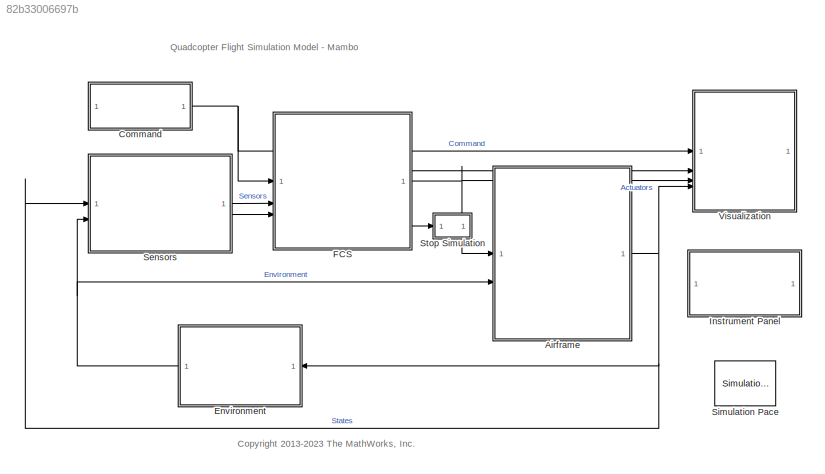
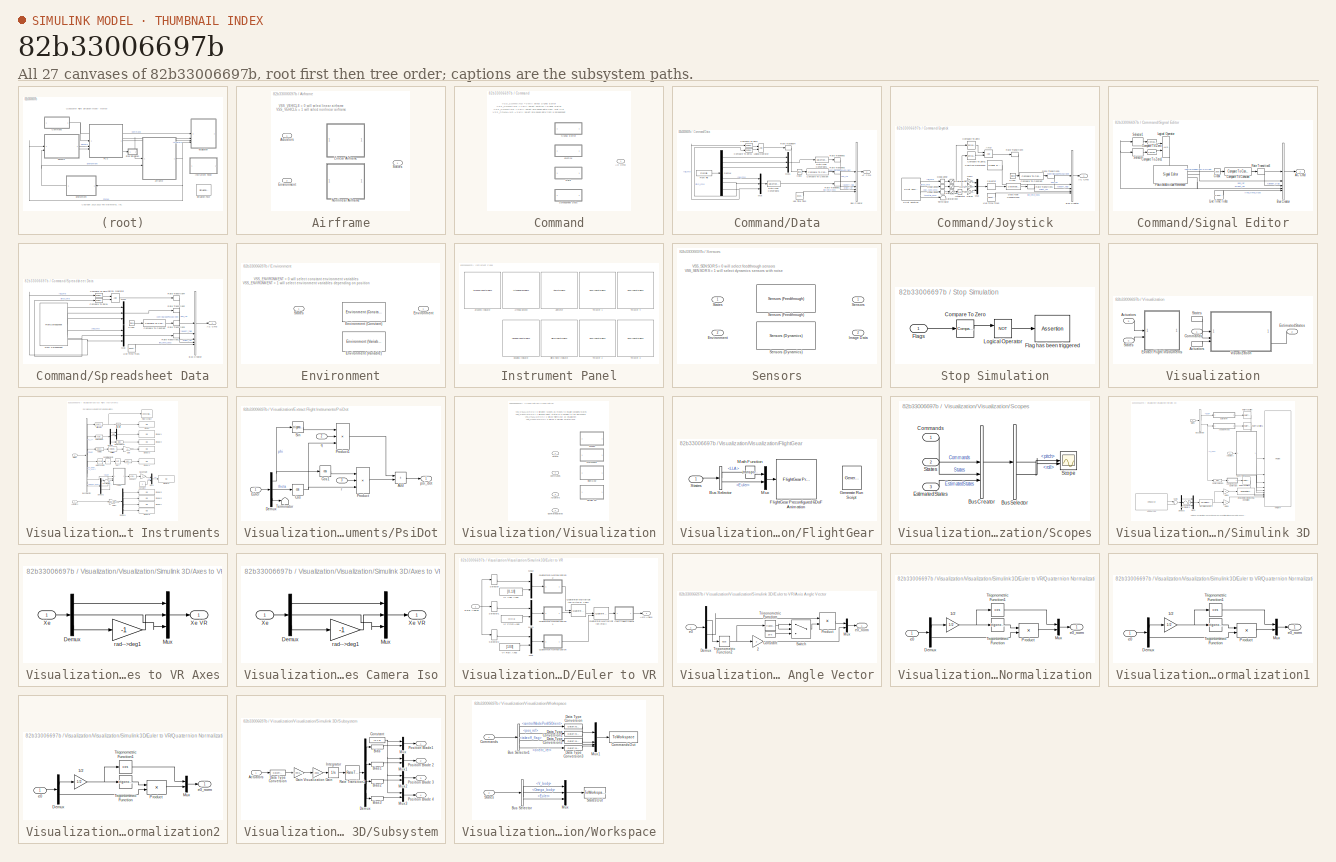
[diagram: thumbnail index - all 27 canvases of the model, root first then tree order]
MODEL slx_82b33006697b
KIND model
CONFIG AbsTol = auto
CONFIG EnableMultiTasking = on
CONFIG FixedStep = Ts
CONFIG MaxStep = auto
CONFIG MinStep = auto
CONFIG RelTol = 1e-3
CONFIG SampleTimeConstraint = Unconstrained
CONFIG SolverName = ode3
CONFIG StartTime = 0
CONFIG StopTime = TFinal
BLOCK [SubSystem] Airframe
  Variant = on
BLOCK [Inport] Airframe/Actuators
BLOCK [Inport] Airframe/Environment
  OutDataTypeStr = Bus: EnvironmentBus
  Port = 2
BLOCK [ModelReference] Airframe/Linear Airframe
  ModelNameDialog = linearAirframe.slx
  ModelReferenceVersion = 9.5
  VariantControl = VSS_VEHICLE==DynamicsMode.Linear
BLOCK [ModelReference] Airframe/Nonlinear Airframe
  ModelNameDialog = nonlinearAirframe.slx
  ModelReferenceVersion = 9.7
  VariantControl = VSS_VEHICLE==DynamicsMode.Nonlinear
BLOCK [Outport] Airframe/States
  OutDataTypeStr = Bus: StatesBus
  VectorParamsAs1DForOutWhenUnconnected = off
BLOCK [SubSystem] Command
  Variant = on
BLOCK [Outport] Command/AC Cmd
  OutDataTypeStr = Bus: CommandBus
  VectorParamsAs1DForOutWhenUnconnected = off
BLOCK [SubSystem] Command/Data
  VariantControl = VSS_COMMAND==CommandMode.Presaved_data
BLOCK [Outport] Command/Data/AC Cmd
  OutDataTypeStr = Bus: CommandBus
  VectorParamsAs1DForOutWhenUnconnected = off
BLOCK [BusCreator] Command/Data/Bus Creator
  DisplayOption = bar
  InheritFromInputs = on
  Inputs = 5
  NonVirtualBus = on
  OutDataTypeStr = Bus: CommandBus
BLOCK [Clock] Command/Data/Clock
BLOCK [Reference] Command/Data/Compare To Constant  REF=simulink/Logic and Bit
Operations/Compare
To Constant
  SourceBlock = simulink/Logic and Bit\nOperations/Compare\nTo Constant
  SourceType = Compare To Constant
BLOCK [Reference] Command/Data/Compare To Zero  REF=simulink/Logic and Bit
Operations/Compare
To Zero
  SourceBlock = simulink/Logic and Bit\nOperations/Compare\nTo Zero
  SourceType = Compare To Zero
BLOCK [Reference] Command/Data/Compare To Zero1  REF=simulink/Logic and Bit
Operations/Compare
To Zero
  SourceBlock = simulink/Logic and Bit\nOperations/Compare\nTo Zero
  SourceType = Compare To Zero
BLOCK [DataTypeConversion] Command/Data/Data Type Conversion1
  OutDataTypeStr = single
  RndMeth = Floor
  SaturateOnIntegerOverflow = off
BLOCK [DataTypeConversion] Command/Data/Data Type Conversion3
  OutDataTypeStr = single
  RndMeth = Floor
  SaturateOnIntegerOverflow = off
BLOCK [Demux] Command/Data/Demux
  Outputs = 6
BLOCK [FromFile] Command/Data/From File
  FileName = cmdData.mat
  SampleTime = Ts
BLOCK [Reference] Command/Data/Live Time Ticks  REF=simulink/Sources/Counter
Free-Running
  SourceBlock = simulink/Sources/Counter\nFree-Running
  SourceType = Counter Free-Running
BLOCK [Logic] Command/Data/Logical Operator
  AllPortsSameDT = off
  OutDataTypeStr = boolean
BLOCK [Mux] Command/Data/Mux
  DisplayOption = bar
  Inputs = 3
BLOCK [Mux] Command/Data/Mux1
  DisplayOption = bar
  Inputs = 3
BLOCK [RateTransition] Command/Data/Rate Transition1
  OutPortSampleTime = Ts
BLOCK [RateTransition] Command/Data/Rate Transition2
  OutPortSampleTime = Ts
BLOCK [RateTransition] Command/Data/Rate Transition3
  OutPortSampleTime = Ts
BLOCK [RateTransition] Command/Data/Rate Transition4
  OutPortSampleTime = Ts
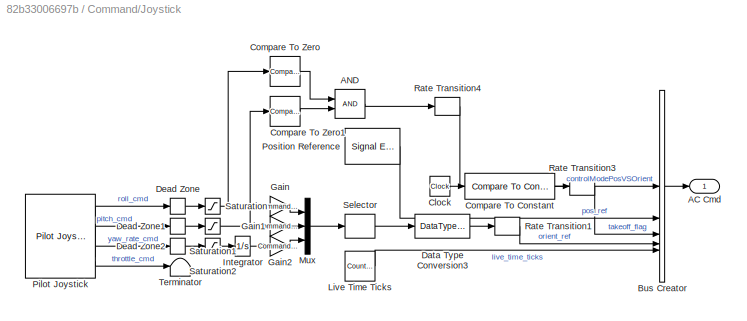
BLOCK [SubSystem] Command/Joystick
  VariantControl = VSS_COMMAND==CommandMode.Joystick
BLOCK [Outport] Command/Joystick/AC Cmd
  OutDataTypeStr = Bus: CommandBus
  VectorParamsAs1DForOutWhenUnconnected = off
BLOCK [Logic] Command/Joystick/AND
  AllPortsSameDT = off
  OutDataTypeStr = boolean
BLOCK [BusCreator] Command/Joystick/Bus Creator
  DisplayOption = bar
  InheritFromInputs = on
  Inputs = 5
  NonVirtualBus = on
  OutDataTypeStr = Bus: CommandBus
BLOCK [Clock] Command/Joystick/Clock
BLOCK [Reference] Command/Joystick/Compare To Constant  REF=simulink/Logic and Bit
Operations/Compare
To Constant
  SourceBlock = simulink/Logic and Bit\nOperations/Compare\nTo Constant
  SourceType = Compare To Constant
BLOCK [Reference] Command/Joystick/Compare To Zero  REF=simulink/Logic and Bit
Operations/Compare
To Zero
  SourceBlock = simulink/Logic and Bit\nOperations/Compare\nTo Zero
  SourceType = Compare To Zero
BLOCK [Reference] Command/Joystick/Compare To Zero1  REF=simulink/Logic and Bit
Operations/Compare
To Zero
  SourceBlock = simulink/Logic and Bit\nOperations/Compare\nTo Zero
  SourceType = Compare To Zero
BLOCK [DataTypeConversion] Command/Joystick/Data Type Conversion3
  OutDataTypeStr = single
  RndMeth = Floor
  SaturateOnIntegerOverflow = off
BLOCK [DeadZone] Command/Joystick/Dead Zone
  LowerValue = Command.rollDeadZoneStart
  UpperValue = Command.rollDeadZoneEnd
BLOCK [DeadZone] Command/Joystick/Dead Zone1
  LowerValue = Command.pitchDeadZoneStart
  UpperValue = Command.pitchDeadZoneEnd
BLOCK [DeadZone] Command/Joystick/Dead Zone2
  LowerValue = Command.yawDeadZoneStart
  UpperValue = Command.yawDeadZoneEnd
BLOCK [Gain] Command/Joystick/Gain
  Gain = Command.rollGain
BLOCK [Gain] Command/Joystick/Gain1
  Gain = Command.pitchGain
BLOCK [Gain] Command/Joystick/Gain2
  Gain = Command.yawGain
BLOCK [Integrator] Command/Joystick/Integrator
BLOCK [Reference] Command/Joystick/Live Time Ticks  REF=simulink/Sources/Counter
Free-Running
  SourceBlock = simulink/Sources/Counter\nFree-Running
  SourceType = Counter Free-Running
BLOCK [Mux] Command/Joystick/Mux
  DisplayOption = bar
  Inputs = 3
BLOCK [Reference] Command/Joystick/Pilot Joystick  REF=aerolibanimutils/Pilot Joystick
  SourceBlock = aerolibanimutils/Pilot Joystick
  SourceType = PilotJoystick
BLOCK [Reference] Command/Joystick/Position Reference  REF=SignalEditorBlockLib/Signal Editor
  SourceBlock = SignalEditorBlockLib/Signal Editor
  SourceType = SignalEditor
  UserDataPersistent = on
BLOCK [RateTransition] Command/Joystick/Rate Transition1
  OutPortSampleTime = Ts
BLOCK [RateTransition] Command/Joystick/Rate Transition3
  OutPortSampleTime = Ts
BLOCK [RateTransition] Command/Joystick/Rate Transition4
  OutPortSampleTime = Ts
BLOCK [Saturate] Command/Joystick/Saturation
  LowerLimit = Command.rollSatLower
  UpperLimit = Command.rollSatUpper
BLOCK [Saturate] Command/Joystick/Saturation1
  LowerLimit = Command.pitchSatLower
  UpperLimit = Command.pitchSatUpper
BLOCK [Saturate] Command/Joystick/Saturation2
  LowerLimit = Command.yawSatLower
  UpperLimit = Command.yawSatUpper
BLOCK [Selector] Command/Joystick/Selector
  IndexOptions = Index vector (dialog)
  Indices = [3 2 1]
  InputPortWidth = 3
  OutputSizes = 1
BLOCK [Terminator] Command/Joystick/Terminator
BLOCK [SubSystem] Command/Signal Editor
  VariantControl = VSS_COMMAND==CommandMode.Signal_Editor
BLOCK [Outport] Command/Signal Editor/AC Cmd
  OutDataTypeStr = Bus: CommandBus
  VectorParamsAs1DForOutWhenUnconnected = off
BLOCK [BusCreator] Command/Signal Editor/Bus Creator
  DisplayOption = bar
  InheritFromInputs = on
  Inputs = 5
  NonVirtualBus = on
  OutDataTypeStr = Bus: CommandBus
BLOCK [Clock] Command/Signal Editor/Clock
BLOCK [Reference] Command/Signal Editor/Compare To Constant  REF=simulink/Logic and Bit
Operations/Compare
To Constant
  SourceBlock = simulink/Logic and Bit\nOperations/Compare\nTo Constant
  SourceType = Compare To Constant
BLOCK [Reference] Command/Signal Editor/Compare To Zero  REF=simulink/Logic and Bit
Operations/Compare
To Zero
  SourceBlock = simulink/Logic and Bit\nOperations/Compare\nTo Zero
  SourceType = Compare To Zero
BLOCK [Reference] Command/Signal Editor/Compare To Zero1  REF=simulink/Logic and Bit
Operations/Compare
To Zero
  SourceBlock = simulink/Logic and Bit\nOperations/Compare\nTo Zero
  SourceType = Compare To Zero
BLOCK [Reference] Command/Signal Editor/Live Time Ticks  REF=simulink/Sources/Counter
Free-Running
  SourceBlock = simulink/Sources/Counter\nFree-Running
  SourceType = Counter Free-Running
BLOCK [Logic] Command/Signal Editor/Logical Operator
  AllPortsSameDT = off
  OutDataTypeStr = boolean
BLOCK [Reference] Command/Signal Editor/Position//Attitude Reference  REF=SignalEditorBlockLib/Signal Editor
  SourceBlock = SignalEditorBlockLib/Signal Editor
  SourceType = SignalEditor
  UserDataPersistent = on
BLOCK [RateTransition] Command/Signal Editor/Rate Transition3
  OutPortSampleTime = Ts
BLOCK [Selector] Command/Signal Editor/Selector
  IndexOptions = Index vector (dialog)
  Indices = 2
  InputPortWidth = 3
  OutputSizes = 1
BLOCK [Selector] Command/Signal Editor/Selector1
  IndexOptions = Index vector (dialog)
  Indices = 3
  InputPortWidth = 3
  OutputSizes = 1
BLOCK [SubSystem] Command/Spreadsheet Data
  VariantControl = VSS_COMMAND==CommandMode.Presaved_data_in_a_Spreadsheet
BLOCK [Outport] Command/Spreadsheet Data/AC Cmd
  OutDataTypeStr = Bus: CommandBus
  VectorParamsAs1DForOutWhenUnconnected = off
BLOCK [BusCreator] Command/Spreadsheet Data/Bus Creator
  DisplayOption = bar
  InheritFromInputs = on
  Inputs = 5
  NonVirtualBus = on
  OutDataTypeStr = Bus: CommandBus
BLOCK [Clock] Command/Spreadsheet Data/Clock
BLOCK [Reference] Command/Spreadsheet Data/Compare To Constant  REF=simulink/Logic and Bit
Operations/Compare
To Constant
  SourceBlock = simulink/Logic and Bit\nOperations/Compare\nTo Constant
  SourceType = Compare To Constant
BLOCK [Reference] Command/Spreadsheet Data/Compare To Zero  REF=simulink/Logic and Bit
Operations/Compare
To Zero
  SourceBlock = simulink/Logic and Bit\nOperations/Compare\nTo Zero
  SourceType = Compare To Zero
BLOCK [Reference] Command/Spreadsheet Data/Compare To Zero1  REF=simulink/Logic and Bit
Operations/Compare
To Zero
  SourceBlock = simulink/Logic and Bit\nOperations/Compare\nTo Zero
  SourceType = Compare To Zero
BLOCK [FromSpreadsheet] Command/Spreadsheet Data/From Spreadsheet
  FileName = cmdData.xlsx
  OutDataTypeStr = single
  SampleTime = Ts
  SheetName = data
BLOCK [Reference] Command/Spreadsheet Data/Live Time Ticks  REF=simulink/Sources/Counter
Free-Running
  SourceBlock = simulink/Sources/Counter\nFree-Running
  SourceType = Counter Free-Running
BLOCK [Logic] Command/Spreadsheet Data/Logical Operator
  AllPortsSameDT = off
  OutDataTypeStr = boolean
BLOCK [Mux] Command/Spreadsheet Data/Mux
  DisplayOption = bar
  Inputs = 3
BLOCK [Mux] Command/Spreadsheet Data/Mux1
  DisplayOption = bar
  Inputs = 3
BLOCK [RateTransition] Command/Spreadsheet Data/Rate Transition1
  OutPortSampleTime = Ts
BLOCK [RateTransition] Command/Spreadsheet Data/Rate Transition2
  OutPortSampleTime = Ts
BLOCK [RateTransition] Command/Spreadsheet Data/Rate Transition3
  OutPortSampleTime = Ts
BLOCK [RateTransition] Command/Spreadsheet Data/Rate Transition4
  OutPortSampleTime = Ts
BLOCK [SubSystem] Environment
  Variant = on
BLOCK [Outport] Environment/Environment
  OutDataTypeStr = Bus: EnvironmentBus
  VectorParamsAs1DForOutWhenUnconnected = off
BLOCK [Reference] Environment/Environment (Constant)  REF=environmentLibrary/Environment (Constant)
  SourceBlock = environmentLibrary/Environment (Constant)
  SourceType = SubSystem
BLOCK [Reference] Environment/Environment (Variable)  REF=environmentLibrary/Environment (Variable)
  SourceBlock = environmentLibrary/Environment (Variable)
  SourceType = SubSystem
BLOCK [Inport] Environment/States
  OutDataTypeStr = Bus: StatesBus
BLOCK [ModelReference] FCS
  ModelNameDialog = flightControlSystem.slx
  ModelReferenceVersion = 9.11
  PortSchema = {"entries":[{"content":{"sides":[{"content":{"connectorIds":["In1","In2","In3"]},"type":"ConnectorPlacement.EquallySpacedRectSide","uuid":"3b8a9085-81e2-4b31-8b72-0ce6798fab65"},{"content":{"connectorIds":["Out3","Out1","Out2"],"side":"RIGHT"},"type":"ConnectorPlacement.EquallySpacedRectSide","uuid":"1bca25a2-c514-4229-ac85-7a6014447b62"},{"content":{"side":"TOP"},"type":"ConnectorPlacement.Equall...<+248ch>
BLOCK [SubSystem] Instrument Panel
BLOCK [AirspeedIndicatorBlock] Instrument Panel/Airspeed Indicator
  LabelPosition = Hide
  ScaleMax = 18
  ScaleMin = 0
BLOCK [AltimeterBlock] Instrument Panel/Altimeter
  LabelPosition = Hide
BLOCK [ArtificialHorizonBlock] Instrument Panel/Artificial Horizon
  LabelPosition = Hide
BLOCK [ClimbIndicatorBlock] Instrument Panel/Climb Rate Indicator
  LabelPosition = Hide
  ScaleMax = 1000
BLOCK [HeadingIndicatorBlock] Instrument Panel/Heading Indicator
  LabelPosition = Hide
BLOCK [RPMIndicatorBlock] Instrument Panel/Thruster 1
  LabelPosition = Hide
BLOCK [RPMIndicatorBlock] Instrument Panel/Thruster 2
  LabelPosition = Hide
BLOCK [RPMIndicatorBlock] Instrument Panel/Thruster 3
  LabelPosition = Hide
BLOCK [RPMIndicatorBlock] Instrument Panel/Thruster 4
  LabelPosition = Hide
BLOCK [SubSystem] Sensors
  Variant = on
BLOCK [Inport] Sensors/Environment
  Port = 2
BLOCK [Outport] Sensors/Image Data
  Port = 2
  VectorParamsAs1DForOutWhenUnconnected = off
BLOCK [Outport] Sensors/Sensors
  VectorParamsAs1DForOutWhenUnconnected = off
BLOCK [Reference] Sensors/Sensors (Dynamics)  REF=sensorsLibrary/Sensors (Dynamics)
  SourceBlock = sensorsLibrary/Sensors (Dynamics)
BLOCK [Reference] Sensors/Sensors (Feedthrough)  REF=sensorsLibrary/Sensors (Feedthrough)
  SourceBlock = sensorsLibrary/Sensors (Feedthrough)
  SourceType = SubSystem
BLOCK [Inport] Sensors/States
BLOCK [Reference] Simulation Pace  REF=aerolibanimutils/Simulation Pace
  AttributesFormatString = %<SimulationPace> sec/sec
  Commented = on
  SourceBlock = aerolibanimutils/Simulation Pace
  SourceType = Simulation Pace
BLOCK [SubSystem] Stop Simulation
BLOCK [Reference] Stop Simulation/Compare To Zero  REF=simulink/Logic and Bit
Operations/Compare
To Zero
  SourceBlock = simulink/Logic and Bit\nOperations/Compare\nTo Zero
  SourceType = Compare To Zero
BLOCK [Assertion] Stop Simulation/Flag has been triggered
  Enabled = off
BLOCK [Inport] Stop Simulation/Flags
  OutDataTypeStr = uint8
BLOCK [Logic] Stop Simulation/Logical Operator
  AllPortsSameDT = off
  Operator = NOT
  OutDataTypeStr = boolean
BLOCK [SubSystem] Visualization
BLOCK [Inport] Visualization/Actuators
  Port = 3
BLOCK [InportShadow] Visualization/Actuators 
  Port = 3
BLOCK [Inport] Visualization/Commands
BLOCK [Inport] Visualization/EstimatedStates
  NameLocation = top
  Port = 2
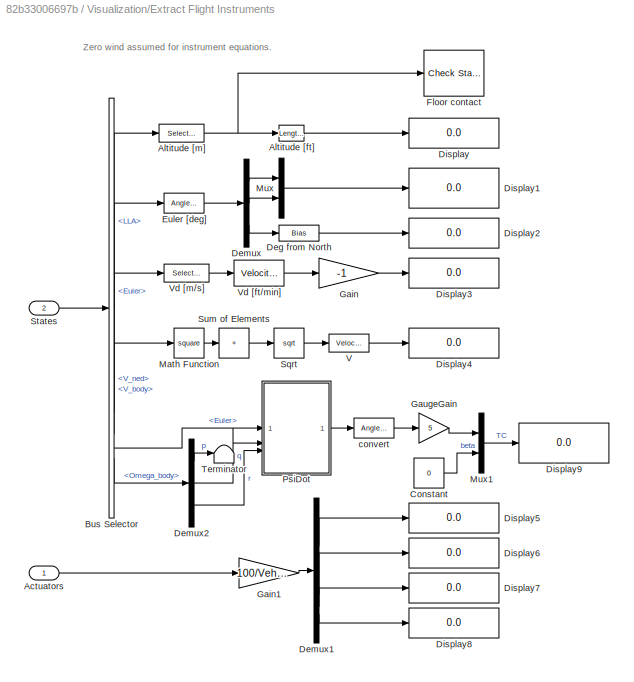
BLOCK [SubSystem] Visualization/Extract Flight Instruments
BLOCK [Inport] Visualization/Extract Flight Instruments/Actuators
BLOCK [Reference] Visualization/Extract Flight Instruments/Altitude [ft]  REF=aerolibconvert2/Length Conversion
  SourceBlock = aerolibconvert2/Length Conversion
  SourceType = Length Conversion
BLOCK [Selector] Visualization/Extract Flight Instruments/Altitude [m]
  IndexOptions = Index vector (dialog)
  Indices = [3]
  InputPortWidth = 3
  OutputSizes = 1
BLOCK [BusSelector] Visualization/Extract Flight Instruments/Bus Selector
  OutputSignals = LLA,Euler,V_ned,V_body,Euler,Omega_body
BLOCK [Constant] Visualization/Extract Flight Instruments/Constant
  Value = 0
BLOCK [Bias] Visualization/Extract Flight Instruments/Deg from North
  Bias = Vehicle.PositionOnEarth.FlatEarthToLLA.xAxis
  SaturateOnIntegerOverflow = off
BLOCK [Demux] Visualization/Extract Flight Instruments/Demux
  Outputs = 3
BLOCK [Demux] Visualization/Extract Flight Instruments/Demux1
BLOCK [Demux] Visualization/Extract Flight Instruments/Demux2
  Outputs = 3
BLOCK [Display] Visualization/Extract Flight Instruments/Display
  Decimation = 1
BLOCK [Display] Visualization/Extract Flight Instruments/Display1
  Decimation = 1
BLOCK [Display] Visualization/Extract Flight Instruments/Display2
  Decimation = 1
BLOCK [Display] Visualization/Extract Flight Instruments/Display3
  Decimation = 1
BLOCK [Display] Visualization/Extract Flight Instruments/Display4
  Decimation = 1
BLOCK [Display] Visualization/Extract Flight Instruments/Display5
  Decimation = 1
BLOCK [Display] Visualization/Extract Flight Instruments/Display6
  Decimation = 1
BLOCK [Display] Visualization/Extract Flight Instruments/Display7
  Decimation = 1
BLOCK [Display] Visualization/Extract Flight Instruments/Display8
  Decimation = 1
BLOCK [Display] Visualization/Extract Flight Instruments/Display9
  Decimation = 1
BLOCK [Reference] Visualization/Extract Flight Instruments/Euler [deg]  REF=aerolibconvert2/Angle Conversion
  SourceBlock = aerolibconvert2/Angle Conversion
  SourceType = Angle Conversion
BLOCK [Reference] Visualization/Extract Flight Instruments/Floor contact  REF=simulink/Model
Verification/Check Static 
Lower Bound
  Description = init.posLLA(3) <= u
  SourceBlock = simulink/Model\nVerification/Check Static \nLower Bound
  SourceType = Checks_SMin
BLOCK [Gain] Visualization/Extract Flight Instruments/Gain
  Gain = -1
BLOCK [Gain] Visualization/Extract Flight Instruments/Gain1
  Gain = 100/Vehicle.Motor.maxLimit*[1 -1 1 -1]
BLOCK [Gain] Visualization/Extract Flight Instruments/GaugeGain
  Gain = 5
BLOCK [Math] Visualization/Extract Flight Instruments/Math Function
  Operator = square
  SignedPower = on
BLOCK [Mux] Visualization/Extract Flight Instruments/Mux
  DisplayOption = bar
  Inputs = 2
BLOCK [Mux] Visualization/Extract Flight Instruments/Mux1
  DisplayOption = bar
  Inputs = 2
BLOCK [SubSystem] Visualization/Extract Flight Instruments/PsiDot
BLOCK [Sum] Visualization/Extract Flight Instruments/PsiDot/Add
  IconShape = rectangular
BLOCK [Trigonometry] Visualization/Extract Flight Instruments/PsiDot/Cos
  Operator = cos
BLOCK [Trigonometry] Visualization/Extract Flight Instruments/PsiDot/Cos1
  Operator = cos
BLOCK [Demux] Visualization/Extract Flight Instruments/PsiDot/Demux
  Outputs = 3
BLOCK [Inport] Visualization/Extract Flight Instruments/PsiDot/Euler
BLOCK [Product] Visualization/Extract Flight Instruments/PsiDot/Product
  Inputs = **/
BLOCK [Product] Visualization/Extract Flight Instruments/PsiDot/Product1
  Inputs = **/
BLOCK [Trigonometry] Visualization/Extract Flight Instruments/PsiDot/Sin
BLOCK [Terminator] Visualization/Extract Flight Instruments/PsiDot/Terminator
BLOCK [Outport] Visualization/Extract Flight Instruments/PsiDot/psi_dot
BLOCK [Inport] Visualization/Extract Flight Instruments/PsiDot/q
  Port = 2
BLOCK [Inport] Visualization/Extract Flight Instruments/PsiDot/r
  Port = 3
BLOCK [Sqrt] Visualization/Extract Flight Instruments/Sqrt
BLOCK [Inport] Visualization/Extract Flight Instruments/States
  Port = 2
BLOCK [Sum] Visualization/Extract Flight Instruments/Sum of Elements
  IconShape = rectangular
  Inputs = +
BLOCK [Terminator] Visualization/Extract Flight Instruments/Terminator
BLOCK [Reference] Visualization/Extract Flight Instruments/V  REF=aerolibconvert2/Velocity Conversion
  SourceBlock = aerolibconvert2/Velocity Conversion
  SourceType = Velocity Conversion
BLOCK [Reference] Visualization/Extract Flight Instruments/Vd [ft//min]  REF=aerolibconvert2/Velocity Conversion
  SourceBlock = aerolibconvert2/Velocity Conversion
  SourceType = Velocity Conversion
BLOCK [Selector] Visualization/Extract Flight Instruments/Vd [m//s]
  IndexOptions = Index vector (dialog)
  Indices = [3]
  InputPortWidth = 3
  OutputSizes = 1
BLOCK [Reference] Visualization/Extract Flight Instruments/convert  REF=aerolibconvert2/Angle Conversion
  SourceBlock = aerolibconvert2/Angle Conversion
  SourceType = Angle Conversion
BLOCK [Inport] Visualization/States
  Port = 4
BLOCK [InportShadow] Visualization/States 
  Port = 4
BLOCK [SubSystem] Visualization/Visualization
  PortSchema = {"entries":[{"content":{"sides":[{"content":{"connectorIds":["In1","In2","In3"]},"type":"ConnectorPlacement.EquallySpacedRectSide","uuid":"2c9bd87c-512d-49f9-9652-4e64ed9ffaba"},{"content":{"connectorIds":["In4"],"side":"RIGHT"},"type":"ConnectorPlacement.EquallySpacedRectSide","uuid":"cf9bbf52-b4e5-493a-96ca-812109a76c1f"},{"content":{"side":"TOP"},"type":"ConnectorPlacement.EquallySpacedRectSide...<+233ch>
  Variant = on
BLOCK [Inport] Visualization/Visualization/Actuators
  Port = 3
BLOCK [Inport] Visualization/Visualization/Commands
  OutDataTypeStr = Bus: CommandBus
  Port = 2
BLOCK [Inport] Visualization/Visualization/EstimatedStates
  Port = 4
BLOCK [SubSystem] Visualization/Visualization/FlightGear
  VariantControl = VSS_VISUALIZATION==VisualizationMode.FlightGear
BLOCK [BusSelector] Visualization/Visualization/FlightGear/Bus Selector
  OutputSignals = LLA,Euler
BLOCK [Reference] Visualization/Visualization/FlightGear/FlightGear Preconfigured 6DoF Animation  REF=aerolibfltsims/FlightGear
Preconfigured
6DoF Animation
  AttributesFormatString = Version Selected: %<xFlightGearVersion>
  SourceBlock = aerolibfltsims/FlightGear\nPreconfigured\n6DoF Animation
  SourceType = FlightGearQuick6DoFAnimation
BLOCK [Reference] Visualization/Visualization/FlightGear/Generate Run Script  REF=aerolibfltsims/Generate
Run Script
  SourceBlock = aerolibfltsims/Generate\nRun Script
  SourceType = Generate FlightGear Run Script
BLOCK [Math] Visualization/Visualization/FlightGear/Math Function
  Operator = transpose
  SignedPower = on
BLOCK [Mux] Visualization/Visualization/FlightGear/Mux
  DisplayOption = bar
  Inputs = 2
BLOCK [Inport] Visualization/Visualization/FlightGear/States
BLOCK [SubSystem] Visualization/Visualization/Scopes
  VariantControl = VSS_VISUALIZATION==VisualizationMode.Scopes
BLOCK [BusCreator] Visualization/Visualization/Scopes/Bus Creator
  DisplayOption = bar
  InheritFromInputs = on
  Inputs = 3
BLOCK [BusSelector] Visualization/Visualization/Scopes/Bus Selector
  OutputSignals = EstimatedStates.pitch,EstimatedStates.roll
BLOCK [Inport] Visualization/Visualization/Scopes/Commands
BLOCK [Inport] Visualization/Visualization/Scopes/EstimatedStates
  Port = 3
BLOCK [Scope] Visualization/Visualization/Scopes/Scope
  Floating = off
  NumInputPorts = 2
  ScopeSpecificationString = Simulink.scopes.TimeScopeBlockCfg('CurrentConfiguration', extmgr.ConfigurationSet(extmgr.Configuration('Core','General UI',true),extmgr.Configuration('Core','Source UI',true),extmgr.Configuration('Sources','WiredSimulink',true),extmgr.Configuration('Visuals','Time Domain',true,'SerializedDisplays',{struct('MinYLimReal','-0.12952','MaxYLimReal','0.17791','YLabelReal','','MinYLimMag','0.00000','MaxY...<+1964ch>
BLOCK [Inport] Visualization/Visualization/Scopes/States
  Port = 2
BLOCK [SubSystem] Visualization/Visualization/Simulink 3D
  VariantControl = VSS_VISUALIZATION==VisualizationMode.Simulink_3D
BLOCK [Inport] Visualization/Visualization/Simulink 3D/Actuators
  Port = 2
BLOCK [SubSystem] Visualization/Visualization/Simulink 3D/Axes to VR Axes
BLOCK [SubSystem] Visualization/Visualization/Simulink 3D/Axes to VR Axes Camera Iso
BLOCK [Demux] Visualization/Visualization/Simulink 3D/Axes to VR Axes Camera Iso/Demux
  DisplayOption = none
  Outputs = 3
BLOCK [Mux] Visualization/Visualization/Simulink 3D/Axes to VR Axes Camera Iso/Mux
  DisplayOption = bar
  Inputs = 3
BLOCK [Inport] Visualization/Visualization/Simulink 3D/Axes to VR Axes Camera Iso/Xe
BLOCK [Outport] Visualization/Visualization/Simulink 3D/Axes to VR Axes Camera Iso/Xe VR
  VectorParamsAs1DForOutWhenUnconnected = off
BLOCK [Gain] Visualization/Visualization/Simulink 3D/Axes to VR Axes Camera Iso/rad-->deg1
  Gain = -1
  NameLocation = top
  OutDataTypeStr = Inherit: Same as input
  ParamDataTypeStr = Inherit: Same as input
  SaturateOnIntegerOverflow = on
BLOCK [Demux] Visualization/Visualization/Simulink 3D/Axes to VR Axes/Demux
  DisplayOption = none
  Outputs = 3
BLOCK [Mux] Visualization/Visualization/Simulink 3D/Axes to VR Axes/Mux
  DisplayOption = bar
  Inputs = 3
BLOCK [Inport] Visualization/Visualization/Simulink 3D/Axes to VR Axes/Xe
BLOCK [Outport] Visualization/Visualization/Simulink 3D/Axes to VR Axes/Xe VR
  VectorParamsAs1DForOutWhenUnconnected = off
BLOCK [Gain] Visualization/Visualization/Simulink 3D/Axes to VR Axes/rad-->deg1
  Gain = -1
  NameLocation = top
  OutDataTypeStr = Inherit: Same as input
  ParamDataTypeStr = Inherit: Same as input
  SaturateOnIntegerOverflow = on
BLOCK [BusSelector] Visualization/Visualization/Simulink 3D/Bus Selector
  OutputSignals = Euler,X_ned
BLOCK [Bias] Visualization/Visualization/Simulink 3D/Camera bias Iso
  Bias = [0.9009 .99 -.6247]'
  SaturateOnIntegerOverflow = off
BLOCK [Constant] Visualization/Visualization/Simulink 3D/Constant3
  Value = 0
BLOCK [Demux] Visualization/Visualization/Simulink 3D/Demux3
  Outputs = 3
BLOCK [SubSystem] Visualization/Visualization/Simulink 3D/Euler to VR
BLOCK [Outport] Visualization/Visualization/Simulink 3D/Euler to VR/Axis Angle
  VectorParamsAs1DForOutWhenUnconnected = off
BLOCK [SubSystem] Visualization/Visualization/Simulink 3D/Euler to VR/Axis Angle Vector
BLOCK [Gain] Visualization/Visualization/Simulink 3D/Euler to VR/Axis Angle Vector/2
  Gain = 2
  OutDataTypeStr = Inherit: Same as input
  ParamDataTypeStr = Inherit: Same as input
  SaturateOnIntegerOverflow = on
BLOCK [Constant] Visualization/Visualization/Simulink 3D/Euler to VR/Axis Angle Vector/Constant
  Value = 1e-6
BLOCK [Demux] Visualization/Visualization/Simulink 3D/Euler to VR/Axis Angle Vector/Demux
  DisplayOption = none
  Outputs = [1 3 ]
BLOCK [Mux] Visualization/Visualization/Simulink 3D/Euler to VR/Axis Angle Vector/Mux
  DisplayOption = bar
  Inputs = 2
BLOCK [Product] Visualization/Visualization/Simulink 3D/Euler to VR/Axis Angle Vector/Product
  InputSameDT = on
  Inputs = */
  OutDataTypeStr = Inherit: Same as first input
  SaturateOnIntegerOverflow = on
BLOCK [Switch] Visualization/Visualization/Simulink 3D/Euler to VR/Axis Angle Vector/Switch
  Criteria = u2 ~= 0
  InputSameDT = off
  SaturateOnIntegerOverflow = off
BLOCK [Trigonometry] Visualization/Visualization/Simulink 3D/Euler to VR/Axis Angle Vector/Trigonometric Function
BLOCK [Trigonometry] Visualization/Visualization/Simulink 3D/Euler to VR/Axis Angle Vector/Trigonometric Function2
  Operator = acos
BLOCK [Inport] Visualization/Visualization/Simulink 3D/Euler to VR/Axis Angle Vector/e0
BLOCK [Outport] Visualization/Visualization/Simulink 3D/Euler to VR/Axis Angle Vector/e0_norm
  VectorParamsAs1DForOutWhenUnconnected = off
BLOCK [Inport] Visualization/Visualization/Simulink 3D/Euler to VR/Euler Angles
BLOCK [Mux] Visualization/Visualization/Simulink 3D/Euler to VR/Mux
  DisplayOption = bar
  Inputs = 2
BLOCK [Mux] Visualization/Visualization/Simulink 3D/Euler to VR/Mux1
  DisplayOption = bar
  Inputs = 2
BLOCK [Mux] Visualization/Visualization/Simulink 3D/Euler to VR/Mux2
  DisplayOption = bar
  Inputs = 2
BLOCK [Reference] Visualization/Visualization/Simulink 3D/Euler to VR/Quaternion Multiplication (Pitch & Yaw)  REF=aerolibutil/Quaternion
Multiplication
  SourceBlock = aerolibutil/Quaternion\nMultiplication
  SourceType = Quaternion Multiplication
BLOCK [Reference] Visualization/Visualization/Simulink 3D/Euler to VR/Quaternion Multiplication (Roll)  REF=aerolibutil/Quaternion
Multiplication
  SourceBlock = aerolibutil/Quaternion\nMultiplication
  SourceType = Quaternion Multiplication
BLOCK [SubSystem] Visualization/Visualization/Simulink 3D/Euler to VR/Quaternion Normalization
BLOCK [Gain] Visualization/Visualization/Simulink 3D/Euler to VR/Quaternion Normalization/1//2
  Gain = 1/2
  OutDataTypeStr = Inherit: Same as input
  ParamDataTypeStr = Inherit: Same as input
  SaturateOnIntegerOverflow = on
BLOCK [Demux] Visualization/Visualization/Simulink 3D/Euler to VR/Quaternion Normalization/Demux
  DisplayOption = none
  Outputs = [1 3]
BLOCK [Mux] Visualization/Visualization/Simulink 3D/Euler to VR/Quaternion Normalization/Mux
  DisplayOption = bar
  Inputs = 2
BLOCK [Product] Visualization/Visualization/Simulink 3D/Euler to VR/Quaternion Normalization/Product
  InputSameDT = on
  OutDataTypeStr = Inherit: Same as first input
  SaturateOnIntegerOverflow = on
BLOCK [Trigonometry] Visualization/Visualization/Simulink 3D/Euler to VR/Quaternion Normalization/Trigonometric Function
BLOCK [Trigonometry] Visualization/Visualization/Simulink 3D/Euler to VR/Quaternion Normalization/Trigonometric Function1
  Operator = cos
BLOCK [Inport] Visualization/Visualization/Simulink 3D/Euler to VR/Quaternion Normalization/e0
BLOCK [Outport] Visualization/Visualization/Simulink 3D/Euler to VR/Quaternion Normalization/e0_norm
  VectorParamsAs1DForOutWhenUnconnected = off
BLOCK [SubSystem] Visualization/Visualization/Simulink 3D/Euler to VR/Quaternion Normalization1
BLOCK [Gain] Visualization/Visualization/Simulink 3D/Euler to VR/Quaternion Normalization1/1//2
  Gain = 1/2
  OutDataTypeStr = Inherit: Same as input
  ParamDataTypeStr = Inherit: Same as input
  SaturateOnIntegerOverflow = on
BLOCK [Demux] Visualization/Visualization/Simulink 3D/Euler to VR/Quaternion Normalization1/Demux
  DisplayOption = none
  Outputs = [1 3]
BLOCK [Mux] Visualization/Visualization/Simulink 3D/Euler to VR/Quaternion Normalization1/Mux
  DisplayOption = bar
  Inputs = 2
BLOCK [Product] Visualization/Visualization/Simulink 3D/Euler to VR/Quaternion Normalization1/Product
  InputSameDT = on
  OutDataTypeStr = Inherit: Same as first input
  SaturateOnIntegerOverflow = on
BLOCK [Trigonometry] Visualization/Visualization/Simulink 3D/Euler to VR/Quaternion Normalization1/Trigonometric Function
BLOCK [Trigonometry] Visualization/Visualization/Simulink 3D/Euler to VR/Quaternion Normalization1/Trigonometric Function1
  Operator = cos
BLOCK [Inport] Visualization/Visualization/Simulink 3D/Euler to VR/Quaternion Normalization1/e0
BLOCK [Outport] Visualization/Visualization/Simulink 3D/Euler to VR/Quaternion Normalization1/e0_norm
  VectorParamsAs1DForOutWhenUnconnected = off
BLOCK [SubSystem] Visualization/Visualization/Simulink 3D/Euler to VR/Quaternion Normalization2
BLOCK [Gain] Visualization/Visualization/Simulink 3D/Euler to VR/Quaternion Normalization2/1//2
  Gain = 1/2
  OutDataTypeStr = Inherit: Same as input
  ParamDataTypeStr = Inherit: Same as input
  SaturateOnIntegerOverflow = on
BLOCK [Demux] Visualization/Visualization/Simulink 3D/Euler to VR/Quaternion Normalization2/Demux
  DisplayOption = none
  Outputs = [1 3]
BLOCK [Mux] Visualization/Visualization/Simulink 3D/Euler to VR/Quaternion Normalization2/Mux
  DisplayOption = bar
  Inputs = 2
BLOCK [Product] Visualization/Visualization/Simulink 3D/Euler to VR/Quaternion Normalization2/Product
  InputSameDT = on
  OutDataTypeStr = Inherit: Same as first input
  SaturateOnIntegerOverflow = on
BLOCK [Trigonometry] Visualization/Visualization/Simulink 3D/Euler to VR/Quaternion Normalization2/Trigonometric Function
BLOCK [Trigonometry] Visualization/Visualization/Simulink 3D/Euler to VR/Quaternion Normalization2/Trigonometric Function1
  Operator = cos
BLOCK [Inport] Visualization/Visualization/Simulink 3D/Euler to VR/Quaternion Normalization2/e0
BLOCK [Outport] Visualization/Visualization/Simulink 3D/Euler to VR/Quaternion Normalization2/e0_norm
  VectorParamsAs1DForOutWhenUnconnected = off
BLOCK [Selector] Visualization/Visualization/Simulink 3D/Euler to VR/Selector
  IndexOptions = Index vector (dialog)
  Indices = [3]
  InputPortWidth = 3
  OutputSizes = 1
BLOCK [Selector] Visualization/Visualization/Simulink 3D/Euler to VR/Selector1
  IndexOptions = Index vector (dialog)
  Indices = [2]
  InputPortWidth = 3
  OutputSizes = 1
BLOCK [Selector] Visualization/Visualization/Simulink 3D/Euler to VR/Selector2
  IndexOptions = Index vector (dialog)
  Indices = [1]
  InputPortWidth = 3
  OutputSizes = 1
BLOCK [Constant] Visualization/Visualization/Simulink 3D/Euler to VR/Vr Pitch Axes
  NameLocation = top
  Value = [0 0 1]
BLOCK [Constant] Visualization/Visualization/Simulink 3D/Euler to VR/Vr Roll Axes
  NameLocation = top
  Value = [1 0 0]
BLOCK [Constant] Visualization/Visualization/Simulink 3D/Euler to VR/Vr Yaw Axes
  Value = [0 -1 0]
BLOCK [Gain] Visualization/Visualization/Simulink 3D/Gain8
  Gain = 2
BLOCK [Gain] Visualization/Visualization/Simulink 3D/Gain9
  Gain = -1
BLOCK [Mux] Visualization/Visualization/Simulink 3D/Mux3
  DisplayOption = bar
  Inputs = 3
BLOCK [Reference] Visualization/Visualization/Simulink 3D/Normalize Vector4  REF=vrlib/Utilities/Normalize Vector
  SourceBlock = vrlib/Utilities/Normalize Vector
  SourceType = Normalize Vector
BLOCK [RateTransition] Visualization/Visualization/Simulink 3D/Rate Transition
BLOCK [RateTransition] Visualization/Visualization/Simulink 3D/Rate Transition1
BLOCK [RateTransition] Visualization/Visualization/Simulink 3D/Rate Transition2
BLOCK [Inport] Visualization/Visualization/Simulink 3D/States
BLOCK [SubSystem] Visualization/Visualization/Simulink 3D/Subsystem
BLOCK [Inport] Visualization/Visualization/Simulink 3D/Subsystem/Actuators
BLOCK [Bias] Visualization/Visualization/Simulink 3D/Subsystem/Bias
  Bias = .1
  SaturateOnIntegerOverflow = off
BLOCK [Bias] Visualization/Visualization/Simulink 3D/Subsystem/Bias1
  Bias = -.3
  SaturateOnIntegerOverflow = off
BLOCK [Bias] Visualization/Visualization/Simulink 3D/Subsystem/Bias2
  Bias = .5
  SaturateOnIntegerOverflow = off
BLOCK [Bias] Visualization/Visualization/Simulink 3D/Subsystem/Bias3
  Bias = .7
  SaturateOnIntegerOverflow = off
BLOCK [Constant] Visualization/Visualization/Simulink 3D/Subsystem/Constant
  Value = [0 1 0]
BLOCK [DataTypeConversion] Visualization/Visualization/Simulink 3D/Subsystem/Data Type Conversion
  OutDataTypeStr = double
  RndMeth = Floor
  SaturateOnIntegerOverflow = off
BLOCK [Demux] Visualization/Visualization/Simulink 3D/Subsystem/Demux
BLOCK [Gain] Visualization/Visualization/Simulink 3D/Subsystem/Gain
  Gain = -Vehicle.Motor.commandToW2Gain
BLOCK [Integrator] Visualization/Visualization/Simulink 3D/Subsystem/Integrator
  InitialCondition = [.1  .2 -.3 -.4]
  WrapState = on
  WrappedStateLowerValue = -2*pi
  WrappedStateUpperValue = 2*pi
BLOCK [Mux] Visualization/Visualization/Simulink 3D/Subsystem/Mux
  DisplayOption = bar
  Inputs = 2
BLOCK [Mux] Visualization/Visualization/Simulink 3D/Subsystem/Mux1
  DisplayOption = bar
  Inputs = 2
BLOCK [Mux] Visualization/Visualization/Simulink 3D/Subsystem/Mux2
  DisplayOption = bar
  Inputs = 2
BLOCK [Mux] Visualization/Visualization/Simulink 3D/Subsystem/Mux3
  DisplayOption = bar
  Inputs = 2
BLOCK [Outport] Visualization/Visualization/Simulink 3D/Subsystem/Position Blade 2
  Port = 2
  VectorParamsAs1DForOutWhenUnconnected = off
BLOCK [Outport] Visualization/Visualization/Simulink 3D/Subsystem/Position Blade 3
  Port = 3
  VectorParamsAs1DForOutWhenUnconnected = off
BLOCK [Outport] Visualization/Visualization/Simulink 3D/Subsystem/Position Blade 4
  Port = 4
  VectorParamsAs1DForOutWhenUnconnected = off
BLOCK [Outport] Visualization/Visualization/Simulink 3D/Subsystem/Position Blade1
  VectorParamsAs1DForOutWhenUnconnected = off
BLOCK [RateTransition] Visualization/Visualization/Simulink 3D/Subsystem/Rate Transition2
BLOCK [Gain] Visualization/Visualization/Simulink 3D/Subsystem/Visualization Gain
  Gain = .0001
BLOCK [Sum] Visualization/Visualization/Simulink 3D/Sum3
  Inputs = -+
BLOCK [Terminator] Visualization/Visualization/Simulink 3D/Terminator3
BLOCK [Reference] Visualization/Visualization/Simulink 3D/VR Sink4  REF=vrlib/VR Sink
  InstantiateOnLoad = on
  SourceBlock = vrlib/VR Sink
  SourceType = Virtual Reality Sink
BLOCK [Reference] Visualization/Visualization/Simulink 3D/VR Source3  REF=vrlib/VR Source
  InstantiateOnLoad = on
  SourceBlock = vrlib/VR Source
  SourceType = Virtual Reality Source
BLOCK [Reference] Visualization/Visualization/Simulink 3D/Viewpoint Direction to VRML Orientation  REF=vrlib/Utilities/Viewpoint Direction
to VR Orientation
  SourceBlock = vrlib/Utilities/Viewpoint Direction\nto VR Orientation
  SourceType = Viewpoint Direction to VR Orientation
BLOCK [Inport] Visualization/Visualization/States
  OutDataTypeStr = Bus: StatesBus
BLOCK [SubSystem] Visualization/Visualization/Workspace
  VariantControl = VSS_VISUALIZATION==VisualizationMode.Send_values_to_workspace
BLOCK [BusSelector] Visualization/Visualization/Workspace/Bus Selector
  OutputSignals = V_body,Omega_body,Euler
BLOCK [BusSelector] Visualization/Visualization/Workspace/Bus Selector1
  OutputSignals = controlModePosVSOrient,pos_ref,takeoff_flag,orient_ref
BLOCK [Inport] Visualization/Visualization/Workspace/Commands
BLOCK [ToWorkspace] Visualization/Visualization/Workspace/CommandsOut
  MaxDataPoints = inf
  SampleTime = -1
  SaveFormat = Structure With Time
  VariableName = CommandsOut
BLOCK [DataTypeConversion] Visualization/Visualization/Workspace/Data Type Conversion
  OutDataTypeStr = double
  RndMeth = Floor
  SaturateOnIntegerOverflow = off
BLOCK [DataTypeConversion] Visualization/Visualization/Workspace/Data Type Conversion1
  OutDataTypeStr = double
  RndMeth = Floor
  SaturateOnIntegerOverflow = off
BLOCK [DataTypeConversion] Visualization/Visualization/Workspace/Data Type Conversion2
  OutDataTypeStr = double
  RndMeth = Floor
  SaturateOnIntegerOverflow = off
BLOCK [DataTypeConversion] Visualization/Visualization/Workspace/Data Type Conversion3
  OutDataTypeStr = double
  RndMeth = Floor
  SaturateOnIntegerOverflow = off
BLOCK [Mux] Visualization/Visualization/Workspace/Mux
  DisplayOption = bar
  Inputs = 3
BLOCK [Mux] Visualization/Visualization/Workspace/Mux1
  DisplayOption = bar
BLOCK [Inport] Visualization/Visualization/Workspace/States
  Port = 2
BLOCK [ToWorkspace] Visualization/Visualization/Workspace/StatesOut
  MaxDataPoints = inf
  SampleTime = -1
  SaveFormat = Structure With Time
  VariableName = statesOut
ANNOTATION (root): <copyright redacted>
ANNOTATION (root): Quadcopter Flight Simulation Model - Mambo
ANNOTATION Airframe: VSS_VEHICLE = 0 will select linear airframe VSS_VEHICLE = 1 will select nonlnear airframe
ANNOTATION Command: VSS_COMMAND = 0 will select Signal Editor VSS_COMMAND = 1 will select Joystick + Signal Editor VSS_COMMAND = 2 will select pre-saved data from .mat file VSS_COMMAND = 3 will select pre-saved data from a spreadsheet
ANNOTATION Environment: VSS_ENVIRONMENT = 0 will select constant environment variables VSS_ENVIRONMENT = 1 will select environment variables depending on position
ANNOTATION Sensors: VSS_SENSORS = 0 will select feedthrough sensors VSS_SENSORS = 1 will select dynamics sensors with noise
ANNOTATION Visualization/Extract Flight Instruments: Zero wind assumed for instrument equations.
ANNOTATION Visualization/Visualization: VSS_VISUALIZATION = 0 will select scopes as means to visualie variables/states VSS_VISUALIZATION = 1 will send select states in a variable to the workspace VSS_VISUALIZATION = 2 will use FlightGear as visualization VSS_VISUALIZATION = 3 will use a Simulink 3D interface
ANNOTATION Visualization/Visualization/Simulink 3D: Note : For visualization reasons the 3D representation of the quadcopter body is scaled to four times its actual size.
NET Airframe:1 -> Environment:1, Sensors:1, Visualization:4
LINE Command/Data/Bus Creator:1 -> Command/Data/AC Cmd:1
LINE Command/Data/Clock:1 -> Command/Data/Compare To Constant:1
LINE Command/Data/Compare To Constant:1 -> Command/Data/Rate Transition3:1
LINE Command/Data/Compare To Zero1:1 -> Command/Data/Logical Operator:2
LINE Command/Data/Compare To Zero:1 -> Command/Data/Logical Operator:1
LINE Command/Data/Data Type Conversion1:1 -> Command/Data/Rate Transition2:1
LINE Command/Data/Data Type Conversion3:1 -> Command/Data/Rate Transition1:1
LINE Command/Data/Demux:1 -> Command/Data/Mux1:1
LINE Command/Data/Demux:2 -> Command/Data/Mux1:2
LINE Command/Data/Demux:3 -> Command/Data/Mux1:3
LINE Command/Data/Demux:4 -> Command/Data/Mux:1
NET Command/Data/Demux:5 -> Command/Data/Compare To Zero1:1, Command/Data/Mux:2
NET Command/Data/Demux:6 -> Command/Data/Compare To Zero:1, Command/Data/Mux:3
LINE Command/Data/From File:1 -> Command/Data/Demux:1
LINE Command/Data/Live Time Ticks:1 -> Command/Data/Bus Creator:5
LINE Command/Data/Logical Operator:1 -> Command/Data/Rate Transition4:1
LINE Command/Data/Mux1:1 -> Command/Data/Data Type Conversion1:1
LINE Command/Data/Mux:1 -> Command/Data/Data Type Conversion3:1
LINE Command/Data/Rate Transition1:1 -> Command/Data/Bus Creator:4
LINE Command/Data/Rate Transition2:1 -> Command/Data/Bus Creator:2
LINE Command/Data/Rate Transition3:1 -> Command/Data/Bus Creator:3
LINE Command/Data/Rate Transition4:1 -> Command/Data/Bus Creator:1
LINE Command/Joystick/AND:1 -> Command/Joystick/Rate Transition4:1
LINE Command/Joystick/Bus Creator:1 -> Command/Joystick/AC Cmd:1
LINE Command/Joystick/Clock:1 -> Command/Joystick/Compare To Constant:1
LINE Command/Joystick/Compare To Constant:1 -> Command/Joystick/Rate Transition3:1
LINE Command/Joystick/Compare To Zero1:1 -> Command/Joystick/AND:2
LINE Command/Joystick/Compare To Zero:1 -> Command/Joystick/AND:1
LINE Command/Joystick/Data Type Conversion3:1 -> Command/Joystick/Rate Transition1:1
LINE Command/Joystick/Dead Zone1:1 -> Command/Joystick/Saturation1:1
LINE Command/Joystick/Dead Zone2:1 -> Command/Joystick/Saturation2:1
LINE Command/Joystick/Dead Zone:1 -> Command/Joystick/Saturation:1
LINE Command/Joystick/Gain1:1 -> Command/Joystick/Mux:2
LINE Command/Joystick/Gain2:1 -> Command/Joystick/Mux:3
LINE Command/Joystick/Gain:1 -> Command/Joystick/Mux:1
LINE Command/Joystick/Integrator:1 -> Command/Joystick/Gain2:1
LINE Command/Joystick/Live Time Ticks:1 -> Command/Joystick/Bus Creator:5
LINE Command/Joystick/Mux:1 -> Command/Joystick/Selector:1
LINE Command/Joystick/Pilot Joystick:1 -> Command/Joystick/Dead Zone:1
LINE Command/Joystick/Pilot Joystick:2 -> Command/Joystick/Dead Zone1:1
LINE Command/Joystick/Pilot Joystick:3 -> Command/Joystick/Dead Zone2:1
LINE Command/Joystick/Pilot Joystick:4 -> Command/Joystick/Terminator:1
LINE Command/Joystick/Position Reference:1 -> Command/Joystick/Bus Creator:2
LINE Command/Joystick/Rate Transition1:1 -> Command/Joystick/Bus Creator:4
LINE Command/Joystick/Rate Transition3:1 -> Command/Joystick/Bus Creator:3
LINE Command/Joystick/Rate Transition4:1 -> Command/Joystick/Bus Creator:1
NET Command/Joystick/Saturation1:1 -> Command/Joystick/Compare To Zero1:1, Command/Joystick/Gain1:1
LINE Command/Joystick/Saturation2:1 -> Command/Joystick/Integrator:1
NET Command/Joystick/Saturation:1 -> Command/Joystick/Compare To Zero:1, Command/Joystick/Gain:1
LINE Command/Joystick/Selector:1 -> Command/Joystick/Data Type Conversion3:1
LINE Command/Signal Editor/Bus Creator:1 -> Command/Signal Editor/AC Cmd:1
LINE Command/Signal Editor/Clock:1 -> Command/Signal Editor/Compare To Constant:1
LINE Command/Signal Editor/Compare To Constant:1 -> Command/Signal Editor/Rate Transition3:1
LINE Command/Signal Editor/Compare To Zero1:1 -> Command/Signal Editor/Logical Operator:2
LINE Command/Signal Editor/Compare To Zero:1 -> Command/Signal Editor/Logical Operator:1
LINE Command/Signal Editor/Live Time Ticks:1 -> Command/Signal Editor/Bus Creator:5
LINE Command/Signal Editor/Logical Operator:1 -> Command/Signal Editor/Bus Creator:1
LINE Command/Signal Editor/Position//Attitude Reference:1 -> Command/Signal Editor/Bus Creator:2
NET Command/Signal Editor/Position//Attitude Reference:2 -> Command/Signal Editor/Bus Creator:4, Command/Signal Editor/Selector1:1, Command/Signal Editor/Selector:1
LINE Command/Signal Editor/Rate Transition3:1 -> Command/Signal Editor/Bus Creator:3
LINE Command/Signal Editor/Selector1:1 -> Command/Signal Editor/Compare To Zero:1
LINE Command/Signal Editor/Selector:1 -> Command/Signal Editor/Compare To Zero1:1
LINE Command/Spreadsheet Data/Bus Creator:1 -> Command/Spreadsheet Data/AC Cmd:1
LINE Command/Spreadsheet Data/Clock:1 -> Command/Spreadsheet Data/Compare To Constant:1
LINE Command/Spreadsheet Data/Compare To Constant:1 -> Command/Spreadsheet Data/Rate Transition3:1
LINE Command/Spreadsheet Data/Compare To Zero1:1 -> Command/Spreadsheet Data/Logical Operator:2
LINE Command/Spreadsheet Data/Compare To Zero:1 -> Command/Spreadsheet Data/Logical Operator:1
LINE Command/Spreadsheet Data/From Spreadsheet:1 -> Command/Spreadsheet Data/Mux1:1
LINE Command/Spreadsheet Data/From Spreadsheet:2 -> Command/Spreadsheet Data/Mux1:2
LINE Command/Spreadsheet Data/From Spreadsheet:3 -> Command/Spreadsheet Data/Mux1:3
LINE Command/Spreadsheet Data/From Spreadsheet:4 -> Command/Spreadsheet Data/Mux:1
NET Command/Spreadsheet Data/From Spreadsheet:5 -> Command/Spreadsheet Data/Compare To Zero1:1, Command/Spreadsheet Data/Mux:2
NET Command/Spreadsheet Data/From Spreadsheet:6 -> Command/Spreadsheet Data/Compare To Zero:1, Command/Spreadsheet Data/Mux:3
LINE Command/Spreadsheet Data/Live Time Ticks:1 -> Command/Spreadsheet Data/Bus Creator:5
LINE Command/Spreadsheet Data/Logical Operator:1 -> Command/Spreadsheet Data/Rate Transition4:1
LINE Command/Spreadsheet Data/Mux1:1 -> Command/Spreadsheet Data/Rate Transition2:1
LINE Command/Spreadsheet Data/Mux:1 -> Command/Spreadsheet Data/Rate Transition1:1
LINE Command/Spreadsheet Data/Rate Transition1:1 -> Command/Spreadsheet Data/Bus Creator:4
LINE Command/Spreadsheet Data/Rate Transition2:1 -> Command/Spreadsheet Data/Bus Creator:2
LINE Command/Spreadsheet Data/Rate Transition3:1 -> Command/Spreadsheet Data/Bus Creator:3
LINE Command/Spreadsheet Data/Rate Transition4:1 -> Command/Spreadsheet Data/Bus Creator:1
NET Command:1 -> FCS:1, Visualization:1
NET Environment:1 -> Airframe:2, Sensors:2
NET FCS:1 -> Airframe:1, Visualization:3
LINE FCS:2 -> Stop Simulation:1
LINE FCS:3 -> Visualization:2
LINE Sensors:1 -> FCS:2
LINE Sensors:2 -> FCS:3
LINE Stop Simulation/Compare To Zero:1 -> Stop Simulation/Logical Operator:1
LINE Stop Simulation/Flags:1 -> Stop Simulation/Compare To Zero:1
LINE Stop Simulation/Logical Operator:1 -> Stop Simulation/Flag has been triggered:1
LINE Visualization/Actuators :1 -> Visualization/Visualization:3
LINE Visualization/Actuators:1 -> Visualization/Extract Flight Instruments:1
LINE Visualization/Commands:1 -> Visualization/Visualization:2
LINE Visualization/EstimatedStates:1 -> Visualization/Visualization:4
LINE Visualization/Extract Flight Instruments/Actuators:1 -> Visualization/Extract Flight Instruments/Gain1:1
LINE Visualization/Extract Flight Instruments/Altitude [ft]:1 -> Visualization/Extract Flight Instruments/Display:1
NET Visualization/Extract Flight Instruments/Altitude [m]:1 -> Visualization/Extract Flight Instruments/Altitude [ft]:1, Visualization/Extract Flight Instruments/Floor contact:1
LINE Visualization/Extract Flight Instruments/Bus Selector:1 -> Visualization/Extract Flight Instruments/Altitude [m]:1
LINE Visualization/Extract Flight Instruments/Bus Selector:2 -> Visualization/Extract Flight Instruments/Euler [deg]:1
LINE Visualization/Extract Flight Instruments/Bus Selector:3 -> Visualization/Extract Flight Instruments/Vd [m//s]:1
LINE Visualization/Extract Flight Instruments/Bus Selector:4 -> Visualization/Extract Flight Instruments/Math Function:1
LINE Visualization/Extract Flight Instruments/Bus Selector:5 -> Visualization/Extract Flight Instruments/PsiDot:1
LINE Visualization/Extract Flight Instruments/Bus Selector:6 -> Visualization/Extract Flight Instruments/Demux2:1
LINE Visualization/Extract Flight Instruments/Constant:1 -> Visualization/Extract Flight Instruments/Mux1:2
LINE Visualization/Extract Flight Instruments/Deg from North:1 -> Visualization/Extract Flight Instruments/Display2:1
LINE Visualization/Extract Flight Instruments/Demux1:1 -> Visualization/Extract Flight Instruments/Display5:1
LINE Visualization/Extract Flight Instruments/Demux1:2 -> Visualization/Extract Flight Instruments/Display6:1
LINE Visualization/Extract Flight Instruments/Demux1:3 -> Visualization/Extract Flight Instruments/Display7:1
LINE Visualization/Extract Flight Instruments/Demux1:4 -> Visualization/Extract Flight Instruments/Display8:1
LINE Visualization/Extract Flight Instruments/Demux2:1 -> Visualization/Extract Flight Instruments/Terminator:1
LINE Visualization/Extract Flight Instruments/Demux2:2 -> Visualization/Extract Flight Instruments/PsiDot:2
LINE Visualization/Extract Flight Instruments/Demux2:3 -> Visualization/Extract Flight Instruments/PsiDot:3
LINE Visualization/Extract Flight Instruments/Demux:1 -> Visualization/Extract Flight Instruments/Mux:1
LINE Visualization/Extract Flight Instruments/Demux:2 -> Visualization/Extract Flight Instruments/Mux:2
LINE Visualization/Extract Flight Instruments/Demux:3 -> Visualization/Extract Flight Instruments/Deg from North:1
LINE Visualization/Extract Flight Instruments/Euler [deg]:1 -> Visualization/Extract Flight Instruments/Demux:1
LINE Visualization/Extract Flight Instruments/Gain1:1 -> Visualization/Extract Flight Instruments/Demux1:1
LINE Visualization/Extract Flight Instruments/Gain:1 -> Visualization/Extract Flight Instruments/Display3:1
LINE Visualization/Extract Flight Instruments/GaugeGain:1 -> Visualization/Extract Flight Instruments/Mux1:1
LINE Visualization/Extract Flight Instruments/Math Function:1 -> Visualization/Extract Flight Instruments/Sum of Elements:1
LINE Visualization/Extract Flight Instruments/Mux1:1 -> Visualization/Extract Flight Instruments/Display9:1
LINE Visualization/Extract Flight Instruments/Mux:1 -> Visualization/Extract Flight Instruments/Display1:1
LINE Visualization/Extract Flight Instruments/PsiDot/Add:1 -> Visualization/Extract Flight Instruments/PsiDot/psi_dot:1
LINE Visualization/Extract Flight Instruments/PsiDot/Cos1:1 -> Visualization/Extract Flight Instruments/PsiDot/Product:1
NET Visualization/Extract Flight Instruments/PsiDot/Cos:1 -> Visualization/Extract Flight Instruments/PsiDot/Product1:3, Visualization/Extract Flight Instruments/PsiDot/Product:3
NET Visualization/Extract Flight Instruments/PsiDot/Demux:1 -> Visualization/Extract Flight Instruments/PsiDot/Cos1:1, Visualization/Extract Flight Instruments/PsiDot/Sin:1
LINE Visualization/Extract Flight Instruments/PsiDot/Demux:2 -> Visualization/Extract Flight Instruments/PsiDot/Cos:1
LINE Visualization/Extract Flight Instruments/PsiDot/Demux:3 -> Visualization/Extract Flight Instruments/PsiDot/Terminator:1
LINE Visualization/Extract Flight Instruments/PsiDot/Euler:1 -> Visualization/Extract Flight Instruments/PsiDot/Demux:1
LINE Visualization/Extract Flight Instruments/PsiDot/Product1:1 -> Visualization/Extract Flight Instruments/PsiDot/Add:1
LINE Visualization/Extract Flight Instruments/PsiDot/Product:1 -> Visualization/Extract Flight Instruments/PsiDot/Add:2
LINE Visualization/Extract Flight Instruments/PsiDot/Sin:1 -> Visualization/Extract Flight Instruments/PsiDot/Product1:1
LINE Visualization/Extract Flight Instruments/PsiDot/q:1 -> Visualization/Extract Flight Instruments/PsiDot/Product1:2
LINE Visualization/Extract Flight Instruments/PsiDot/r:1 -> Visualization/Extract Flight Instruments/PsiDot/Product:2
LINE Visualization/Extract Flight Instruments/PsiDot:1 -> Visualization/Extract Flight Instruments/convert:1
LINE Visualization/Extract Flight Instruments/Sqrt:1 -> Visualization/Extract Flight Instruments/V:1
LINE Visualization/Extract Flight Instruments/States:1 -> Visualization/Extract Flight Instruments/Bus Selector:1
LINE Visualization/Extract Flight Instruments/Sum of Elements:1 -> Visualization/Extract Flight Instruments/Sqrt:1
LINE Visualization/Extract Flight Instruments/V:1 -> Visualization/Extract Flight Instruments/Display4:1
LINE Visualization/Extract Flight Instruments/Vd [ft//min]:1 -> Visualization/Extract Flight Instruments/Gain:1
LINE Visualization/Extract Flight Instruments/Vd [m//s]:1 -> Visualization/Extract Flight Instruments/Vd [ft//min]:1
LINE Visualization/Extract Flight Instruments/convert:1 -> Visualization/Extract Flight Instruments/GaugeGain:1
LINE Visualization/States :1 -> Visualization/Visualization:1
LINE Visualization/States:1 -> Visualization/Extract Flight Instruments:2
LINE Visualization/Visualization/FlightGear/Bus Selector:1 -> Visualization/Visualization/FlightGear/Math Function:1
LINE Visualization/Visualization/FlightGear/Bus Selector:2 -> Visualization/Visualization/FlightGear/Mux:2
LINE Visualization/Visualization/FlightGear/Math Function:1 -> Visualization/Visualization/FlightGear/Mux:1
LINE Visualization/Visualization/FlightGear/Mux:1 -> Visualization/Visualization/FlightGear/FlightGear Preconfigured 6DoF Animation:1
LINE Visualization/Visualization/FlightGear/States:1 -> Visualization/Visualization/FlightGear/Bus Selector:1
LINE Visualization/Visualization/Scopes/Bus Creator:1 -> Visualization/Visualization/Scopes/Bus Selector:1
LINE Visualization/Visualization/Scopes/Bus Selector:1 -> Visualization/Visualization/Scopes/Scope:1
LINE Visualization/Visualization/Scopes/Bus Selector:2 -> Visualization/Visualization/Scopes/Scope:2
LINE Visualization/Visualization/Scopes/Commands:1 -> Visualization/Visualization/Scopes/Bus Creator:1
LINE Visualization/Visualization/Scopes/EstimatedStates:1 -> Visualization/Visualization/Scopes/Bus Creator:3
LINE Visualization/Visualization/Scopes/States:1 -> Visualization/Visualization/Scopes/Bus Creator:2
LINE Visualization/Visualization/Simulink 3D/Actuators:1 -> Visualization/Visualization/Simulink 3D/Subsystem:1
LINE Visualization/Visualization/Simulink 3D/Axes to VR Axes Camera Iso/Demux:1 -> Visualization/Visualization/Simulink 3D/Axes to VR Axes Camera Iso/Mux:1
LINE Visualization/Visualization/Simulink 3D/Axes to VR Axes Camera Iso/Demux:2 -> Visualization/Visualization/Simulink 3D/Axes to VR Axes Camera Iso/Mux:3
LINE Visualization/Visualization/Simulink 3D/Axes to VR Axes Camera Iso/Demux:3 -> Visualization/Visualization/Simulink 3D/Axes to VR Axes Camera Iso/rad-->deg1:1
LINE Visualization/Visualization/Simulink 3D/Axes to VR Axes Camera Iso/Mux:1 -> Visualization/Visualization/Simulink 3D/Axes to VR Axes Camera Iso/Xe VR:1
LINE Visualization/Visualization/Simulink 3D/Axes to VR Axes Camera Iso/Xe:1 -> Visualization/Visualization/Simulink 3D/Axes to VR Axes Camera Iso/Demux:1
LINE Visualization/Visualization/Simulink 3D/Axes to VR Axes Camera Iso/rad-->deg1:1 -> Visualization/Visualization/Simulink 3D/Axes to VR Axes Camera Iso/Mux:2
LINE Visualization/Visualization/Simulink 3D/Axes to VR Axes Camera Iso:1 -> Visualization/Visualization/Simulink 3D/Rate Transition2:1
LINE Visualization/Visualization/Simulink 3D/Axes to VR Axes/Demux:1 -> Visualization/Visualization/Simulink 3D/Axes to VR Axes/Mux:1
LINE Visualization/Visualization/Simulink 3D/Axes to VR Axes/Demux:2 -> Visualization/Visualization/Simulink 3D/Axes to VR Axes/Mux:3
LINE Visualization/Visualization/Simulink 3D/Axes to VR Axes/Demux:3 -> Visualization/Visualization/Simulink 3D/Axes to VR Axes/rad-->deg1:1
LINE Visualization/Visualization/Simulink 3D/Axes to VR Axes/Mux:1 -> Visualization/Visualization/Simulink 3D/Axes to VR Axes/Xe VR:1
LINE Visualization/Visualization/Simulink 3D/Axes to VR Axes/Xe:1 -> Visualization/Visualization/Simulink 3D/Axes to VR Axes/Demux:1
LINE Visualization/Visualization/Simulink 3D/Axes to VR Axes/rad-->deg1:1 -> Visualization/Visualization/Simulink 3D/Axes to VR Axes/Mux:2
LINE Visualization/Visualization/Simulink 3D/Axes to VR Axes:1 -> Visualization/Visualization/Simulink 3D/Rate Transition1:1
LINE Visualization/Visualization/Simulink 3D/Bus Selector:1 -> Visualization/Visualization/Simulink 3D/Euler to VR:1
NET Visualization/Visualization/Simulink 3D/Bus Selector:2 -> Visualization/Visualization/Simulink 3D/Axes to VR Axes:1, Visualization/Visualization/Simulink 3D/Camera bias Iso:1
LINE Visualization/Visualization/Simulink 3D/Camera bias Iso:1 -> Visualization/Visualization/Simulink 3D/Axes to VR Axes Camera Iso:1
LINE Visualization/Visualization/Simulink 3D/Constant3:1 -> Visualization/Visualization/Simulink 3D/Mux3:2
LINE Visualization/Visualization/Simulink 3D/Demux3:1 -> Visualization/Visualization/Simulink 3D/Mux3:1
LINE Visualization/Visualization/Simulink 3D/Demux3:2 -> Visualization/Visualization/Simulink 3D/Terminator3:1
LINE Visualization/Visualization/Simulink 3D/Demux3:3 -> Visualization/Visualization/Simulink 3D/Mux3:3
LINE Visualization/Visualization/Simulink 3D/Euler to VR/Axis Angle Vector/2:1 -> Visualization/Visualization/Simulink 3D/Euler to VR/Axis Angle Vector/Mux:2
LINE Visualization/Visualization/Simulink 3D/Euler to VR/Axis Angle Vector/Constant:1 -> Visualization/Visualization/Simulink 3D/Euler to VR/Axis Angle Vector/Switch:3
LINE Visualization/Visualization/Simulink 3D/Euler to VR/Axis Angle Vector/Demux:1 -> Visualization/Visualization/Simulink 3D/Euler to VR/Axis Angle Vector/Trigonometric Function2:1
LINE Visualization/Visualization/Simulink 3D/Euler to VR/Axis Angle Vector/Demux:2 -> Visualization/Visualization/Simulink 3D/Euler to VR/Axis Angle Vector/Product:1
LINE Visualization/Visualization/Simulink 3D/Euler to VR/Axis Angle Vector/Mux:1 -> Visualization/Visualization/Simulink 3D/Euler to VR/Axis Angle Vector/e0_norm:1
LINE Visualization/Visualization/Simulink 3D/Euler to VR/Axis Angle Vector/Product:1 -> Visualization/Visualization/Simulink 3D/Euler to VR/Axis Angle Vector/Mux:1
LINE Visualization/Visualization/Simulink 3D/Euler to VR/Axis Angle Vector/Switch:1 -> Visualization/Visualization/Simulink 3D/Euler to VR/Axis Angle Vector/Product:2
NET Visualization/Visualization/Simulink 3D/Euler to VR/Axis Angle Vector/Trigonometric Function2:1 -> Visualization/Visualization/Simulink 3D/Euler to VR/Axis Angle Vector/2:1, Visualization/Visualization/Simulink 3D/Euler to VR/Axis Angle Vector/Trigonometric Function:1
NET Visualization/Visualization/Simulink 3D/Euler to VR/Axis Angle Vector/Trigonometric Function:1 -> Visualization/Visualization/Simulink 3D/Euler to VR/Axis Angle Vector/Switch:1, Visualization/Visualization/Simulink 3D/Euler to VR/Axis Angle Vector/Switch:2
LINE Visualization/Visualization/Simulink 3D/Euler to VR/Axis Angle Vector/e0:1 -> Visualization/Visualization/Simulink 3D/Euler to VR/Axis Angle Vector/Demux:1
LINE Visualization/Visualization/Simulink 3D/Euler to VR/Axis Angle Vector:1 -> Visualization/Visualization/Simulink 3D/Euler to VR/Axis Angle:1
NET Visualization/Visualization/Simulink 3D/Euler to VR/Euler Angles:1 -> Visualization/Visualization/Simulink 3D/Euler to VR/Selector1:1, Visualization/Visualization/Simulink 3D/Euler to VR/Selector2:1, Visualization/Visualization/Simulink 3D/Euler to VR/Selector:1
LINE Visualization/Visualization/Simulink 3D/Euler to VR/Mux1:1 -> Visualization/Visualization/Simulink 3D/Euler to VR/Quaternion Normalization1:1
LINE Visualization/Visualization/Simulink 3D/Euler to VR/Mux2:1 -> Visualization/Visualization/Simulink 3D/Euler to VR/Quaternion Normalization2:1
LINE Visualization/Visualization/Simulink 3D/Euler to VR/Mux:1 -> Visualization/Visualization/Simulink 3D/Euler to VR/Quaternion Normalization:1
LINE Visualization/Visualization/Simulink 3D/Euler to VR/Quaternion Multiplication (Pitch & Yaw):1 -> Visualization/Visualization/Simulink 3D/Euler to VR/Quaternion Multiplication (Roll):1
LINE Visualization/Visualization/Simulink 3D/Euler to VR/Quaternion Multiplication (Roll):1 -> Visualization/Visualization/Simulink 3D/Euler to VR/Axis Angle Vector:1
NET Visualization/Visualization/Simulink 3D/Euler to VR/Quaternion Normalization/1//2:1 -> Visualization/Visualization/Simulink 3D/Euler to VR/Quaternion Normalization/Trigonometric Function1:1, Visualization/Visualization/Simulink 3D/Euler to VR/Quaternion Normalization/Trigonometric Function:1
LINE Visualization/Visualization/Simulink 3D/Euler to VR/Quaternion Normalization/Demux:1 -> Visualization/Visualization/Simulink 3D/Euler to VR/Quaternion Normalization/1//2:1
LINE Visualization/Visualization/Simulink 3D/Euler to VR/Quaternion Normalization/Demux:2 -> Visualization/Visualization/Simulink 3D/Euler to VR/Quaternion Normalization/Product:2
LINE Visualization/Visualization/Simulink 3D/Euler to VR/Quaternion Normalization/Mux:1 -> Visualization/Visualization/Simulink 3D/Euler to VR/Quaternion Normalization/e0_norm:1
LINE Visualization/Visualization/Simulink 3D/Euler to VR/Quaternion Normalization/Product:1 -> Visualization/Visualization/Simulink 3D/Euler to VR/Quaternion Normalization/Mux:2
LINE Visualization/Visualization/Simulink 3D/Euler to VR/Quaternion Normalization/Trigonometric Function1:1 -> Visualization/Visualization/Simulink 3D/Euler to VR/Quaternion Normalization/Mux:1
LINE Visualization/Visualization/Simulink 3D/Euler to VR/Quaternion Normalization/Trigonometric Function:1 -> Visualization/Visualization/Simulink 3D/Euler to VR/Quaternion Normalization/Product:1
LINE Visualization/Visualization/Simulink 3D/Euler to VR/Quaternion Normalization/e0:1 -> Visualization/Visualization/Simulink 3D/Euler to VR/Quaternion Normalization/Demux:1
NET Visualization/Visualization/Simulink 3D/Euler to VR/Quaternion Normalization1/1//2:1 -> Visualization/Visualization/Simulink 3D/Euler to VR/Quaternion Normalization1/Trigonometric Function1:1, Visualization/Visualization/Simulink 3D/Euler to VR/Quaternion Normalization1/Trigonometric Function:1
LINE Visualization/Visualization/Simulink 3D/Euler to VR/Quaternion Normalization1/Demux:1 -> Visualization/Visualization/Simulink 3D/Euler to VR/Quaternion Normalization1/1//2:1
LINE Visualization/Visualization/Simulink 3D/Euler to VR/Quaternion Normalization1/Demux:2 -> Visualization/Visualization/Simulink 3D/Euler to VR/Quaternion Normalization1/Product:2
LINE Visualization/Visualization/Simulink 3D/Euler to VR/Quaternion Normalization1/Mux:1 -> Visualization/Visualization/Simulink 3D/Euler to VR/Quaternion Normalization1/e0_norm:1
LINE Visualization/Visualization/Simulink 3D/Euler to VR/Quaternion Normalization1/Product:1 -> Visualization/Visualization/Simulink 3D/Euler to VR/Quaternion Normalization1/Mux:2
LINE Visualization/Visualization/Simulink 3D/Euler to VR/Quaternion Normalization1/Trigonometric Function1:1 -> Visualization/Visualization/Simulink 3D/Euler to VR/Quaternion Normalization1/Mux:1
LINE Visualization/Visualization/Simulink 3D/Euler to VR/Quaternion Normalization1/Trigonometric Function:1 -> Visualization/Visualization/Simulink 3D/Euler to VR/Quaternion Normalization1/Product:1
LINE Visualization/Visualization/Simulink 3D/Euler to VR/Quaternion Normalization1/e0:1 -> Visualization/Visualization/Simulink 3D/Euler to VR/Quaternion Normalization1/Demux:1
LINE Visualization/Visualization/Simulink 3D/Euler to VR/Quaternion Normalization1:1 -> Visualization/Visualization/Simulink 3D/Euler to VR/Quaternion Multiplication (Pitch & Yaw):2
NET Visualization/Visualization/Simulink 3D/Euler to VR/Quaternion Normalization2/1//2:1 -> Visualization/Visualization/Simulink 3D/Euler to VR/Quaternion Normalization2/Trigonometric Function1:1, Visualization/Visualization/Simulink 3D/Euler to VR/Quaternion Normalization2/Trigonometric Function:1
LINE Visualization/Visualization/Simulink 3D/Euler to VR/Quaternion Normalization2/Demux:1 -> Visualization/Visualization/Simulink 3D/Euler to VR/Quaternion Normalization2/1//2:1
LINE Visualization/Visualization/Simulink 3D/Euler to VR/Quaternion Normalization2/Demux:2 -> Visualization/Visualization/Simulink 3D/Euler to VR/Quaternion Normalization2/Product:2
LINE Visualization/Visualization/Simulink 3D/Euler to VR/Quaternion Normalization2/Mux:1 -> Visualization/Visualization/Simulink 3D/Euler to VR/Quaternion Normalization2/e0_norm:1
LINE Visualization/Visualization/Simulink 3D/Euler to VR/Quaternion Normalization2/Product:1 -> Visualization/Visualization/Simulink 3D/Euler to VR/Quaternion Normalization2/Mux:2
LINE Visualization/Visualization/Simulink 3D/Euler to VR/Quaternion Normalization2/Trigonometric Function1:1 -> Visualization/Visualization/Simulink 3D/Euler to VR/Quaternion Normalization2/Mux:1
LINE Visualization/Visualization/Simulink 3D/Euler to VR/Quaternion Normalization2/Trigonometric Function:1 -> Visualization/Visualization/Simulink 3D/Euler to VR/Quaternion Normalization2/Product:1
LINE Visualization/Visualization/Simulink 3D/Euler to VR/Quaternion Normalization2/e0:1 -> Visualization/Visualization/Simulink 3D/Euler to VR/Quaternion Normalization2/Demux:1
LINE Visualization/Visualization/Simulink 3D/Euler to VR/Quaternion Normalization2:1 -> Visualization/Visualization/Simulink 3D/Euler to VR/Quaternion Multiplication (Pitch & Yaw):1
LINE Visualization/Visualization/Simulink 3D/Euler to VR/Quaternion Normalization:1 -> Visualization/Visualization/Simulink 3D/Euler to VR/Quaternion Multiplication (Roll):2
LINE Visualization/Visualization/Simulink 3D/Euler to VR/Selector1:1 -> Visualization/Visualization/Simulink 3D/Euler to VR/Mux1:1
LINE Visualization/Visualization/Simulink 3D/Euler to VR/Selector2:1 -> Visualization/Visualization/Simulink 3D/Euler to VR/Mux:1
LINE Visualization/Visualization/Simulink 3D/Euler to VR/Selector:1 -> Visualization/Visualization/Simulink 3D/Euler to VR/Mux2:1
LINE Visualization/Visualization/Simulink 3D/Euler to VR/Vr Pitch Axes:1 -> Visualization/Visualization/Simulink 3D/Euler to VR/Mux1:2
LINE Visualization/Visualization/Simulink 3D/Euler to VR/Vr Roll Axes:1 -> Visualization/Visualization/Simulink 3D/Euler to VR/Mux:2
LINE Visualization/Visualization/Simulink 3D/Euler to VR/Vr Yaw Axes:1 -> Visualization/Visualization/Simulink 3D/Euler to VR/Mux2:2
LINE Visualization/Visualization/Simulink 3D/Euler to VR:1 -> Visualization/Visualization/Simulink 3D/Rate Transition:1
LINE Visualization/Visualization/Simulink 3D/Gain8:1 -> Visualization/Visualization/Simulink 3D/VR Sink4:9
LINE Visualization/Visualization/Simulink 3D/Gain9:1 -> Visualization/Visualization/Simulink 3D/Viewpoint Direction to VRML Orientation:1
LINE Visualization/Visualization/Simulink 3D/Mux3:1 -> Visualization/Visualization/Simulink 3D/Normalize Vector4:1
NET Visualization/Visualization/Simulink 3D/Normalize Vector4:1 -> Visualization/Visualization/Simulink 3D/Gain8:1, Visualization/Visualization/Simulink 3D/Gain9:1
LINE Visualization/Visualization/Simulink 3D/Rate Transition1:1 -> Visualization/Visualization/Simulink 3D/VR Sink4:2
LINE Visualization/Visualization/Simulink 3D/Rate Transition2:1 -> Visualization/Visualization/Simulink 3D/VR Sink4:7
LINE Visualization/Visualization/Simulink 3D/Rate Transition:1 -> Visualization/Visualization/Simulink 3D/VR Sink4:1
LINE Visualization/Visualization/Simulink 3D/States:1 -> Visualization/Visualization/Simulink 3D/Bus Selector:1
LINE Visualization/Visualization/Simulink 3D/Subsystem/Actuators:1 -> Visualization/Visualization/Simulink 3D/Subsystem/Data Type Conversion:1
LINE Visualization/Visualization/Simulink 3D/Subsystem/Bias1:1 -> Visualization/Visualization/Simulink 3D/Subsystem/Mux1:2
LINE Visualization/Visualization/Simulink 3D/Subsystem/Bias2:1 -> Visualization/Visualization/Simulink 3D/Subsystem/Mux2:2
LINE Visualization/Visualization/Simulink 3D/Subsystem/Bias3:1 -> Visualization/Visualization/Simulink 3D/Subsystem/Mux3:2
LINE Visualization/Visualization/Simulink 3D/Subsystem/Bias:1 -> Visualization/Visualization/Simulink 3D/Subsystem/Mux:2
NET Visualization/Visualization/Simulink 3D/Subsystem/Constant:1 -> Visualization/Visualization/Simulink 3D/Subsystem/Mux1:1, Visualization/Visualization/Simulink 3D/Subsystem/Mux2:1, Visualization/Visualization/Simulink 3D/Subsystem/Mux3:1, Visualization/Visualization/Simulink 3D/Subsystem/Mux:1
LINE Visualization/Visualization/Simulink 3D/Subsystem/Data Type Conversion:1 -> Visualization/Visualization/Simulink 3D/Subsystem/Gain:1
LINE Visualization/Visualization/Simulink 3D/Subsystem/Demux:1 -> Visualization/Visualization/Simulink 3D/Subsystem/Bias:1
LINE Visualization/Visualization/Simulink 3D/Subsystem/Demux:2 -> Visualization/Visualization/Simulink 3D/Subsystem/Bias1:1
LINE Visualization/Visualization/Simulink 3D/Subsystem/Demux:3 -> Visualization/Visualization/Simulink 3D/Subsystem/Bias2:1
LINE Visualization/Visualization/Simulink 3D/Subsystem/Demux:4 -> Visualization/Visualization/Simulink 3D/Subsystem/Bias3:1
LINE Visualization/Visualization/Simulink 3D/Subsystem/Gain:1 -> Visualization/Visualization/Simulink 3D/Subsystem/Visualization Gain:1
LINE Visualization/Visualization/Simulink 3D/Subsystem/Integrator:1 -> Visualization/Visualization/Simulink 3D/Subsystem/Rate Transition2:1
LINE Visualization/Visualization/Simulink 3D/Subsystem/Mux1:1 -> Visualization/Visualization/Simulink 3D/Subsystem/Position Blade 2:1
LINE Visualization/Visualization/Simulink 3D/Subsystem/Mux2:1 -> Visualization/Visualization/Simulink 3D/Subsystem/Position Blade 3:1
LINE Visualization/Visualization/Simulink 3D/Subsystem/Mux3:1 -> Visualization/Visualization/Simulink 3D/Subsystem/Position Blade 4:1
LINE Visualization/Visualization/Simulink 3D/Subsystem/Mux:1 -> Visualization/Visualization/Simulink 3D/Subsystem/Position Blade1:1
LINE Visualization/Visualization/Simulink 3D/Subsystem/Rate Transition2:1 -> Visualization/Visualization/Simulink 3D/Subsystem/Demux:1
LINE Visualization/Visualization/Simulink 3D/Subsystem/Visualization Gain:1 -> Visualization/Visualization/Simulink 3D/Subsystem/Integrator:1
LINE Visualization/Visualization/Simulink 3D/Subsystem:1 -> Visualization/Visualization/Simulink 3D/VR Sink4:3
LINE Visualization/Visualization/Simulink 3D/Subsystem:2 -> Visualization/Visualization/Simulink 3D/VR Sink4:4
LINE Visualization/Visualization/Simulink 3D/Subsystem:3 -> Visualization/Visualization/Simulink 3D/VR Sink4:5
LINE Visualization/Visualization/Simulink 3D/Subsystem:4 -> Visualization/Visualization/Simulink 3D/VR Sink4:6
LINE Visualization/Visualization/Simulink 3D/Sum3:1 -> Visualization/Visualization/Simulink 3D/Demux3:1
LINE Visualization/Visualization/Simulink 3D/VR Source3:1 -> Visualization/Visualization/Simulink 3D/Sum3:1
LINE Visualization/Visualization/Simulink 3D/VR Source3:2 -> Visualization/Visualization/Simulink 3D/Sum3:2
LINE Visualization/Visualization/Simulink 3D/Viewpoint Direction to VRML Orientation:1 -> Visualization/Visualization/Simulink 3D/VR Sink4:8
LINE Visualization/Visualization/Workspace/Bus Selector1:1 -> Visualization/Visualization/Workspace/Data Type Conversion:1
LINE Visualization/Visualization/Workspace/Bus Selector1:2 -> Visualization/Visualization/Workspace/Data Type Conversion1:1
LINE Visualization/Visualization/Workspace/Bus Selector1:3 -> Visualization/Visualization/Workspace/Data Type Conversion2:1
LINE Visualization/Visualization/Workspace/Bus Selector1:4 -> Visualization/Visualization/Workspace/Data Type Conversion3:1
LINE Visualization/Visualization/Workspace/Bus Selector:1 -> Visualization/Visualization/Workspace/Mux:1
LINE Visualization/Visualization/Workspace/Bus Selector:2 -> Visualization/Visualization/Workspace/Mux:2
LINE Visualization/Visualization/Workspace/Bus Selector:3 -> Visualization/Visualization/Workspace/Mux:3
LINE Visualization/Visualization/Workspace/Commands:1 -> Visualization/Visualization/Workspace/Bus Selector1:1
LINE Visualization/Visualization/Workspace/Data Type Conversion1:1 -> Visualization/Visualization/Workspace/Mux1:2
LINE Visualization/Visualization/Workspace/Data Type Conversion2:1 -> Visualization/Visualization/Workspace/Mux1:3
LINE Visualization/Visualization/Workspace/Data Type Conversion3:1 -> Visualization/Visualization/Workspace/Mux1:4
LINE Visualization/Visualization/Workspace/Data Type Conversion:1 -> Visualization/Visualization/Workspace/Mux1:1
LINE Visualization/Visualization/Workspace/Mux1:1 -> Visualization/Visualization/Workspace/CommandsOut:1
LINE Visualization/Visualization/Workspace/Mux:1 -> Visualization/Visualization/Workspace/StatesOut:1
LINE Visualization/Visualization/Workspace/States:1 -> Visualization/Visualization/Workspace/Bus Selector:1
note: NET lines group one-source signal fan-out (src -> all destinations, sorted); 1:1 wires keep LINE
